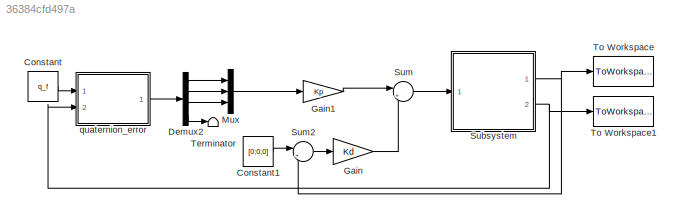
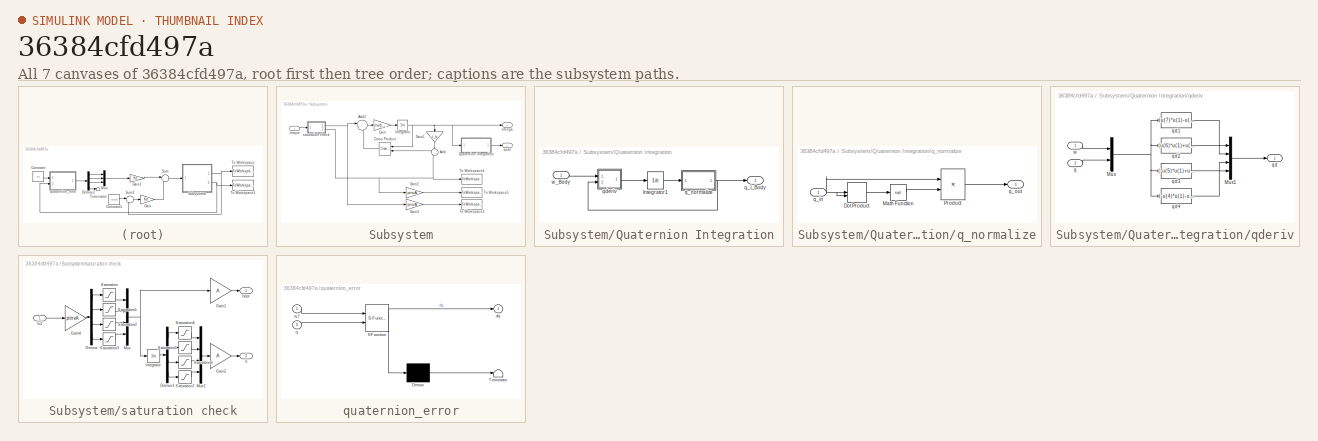
[diagram: thumbnail index - all 7 canvases of the model, root first then tree order]
MODEL slx_36384cfd497a
KIND model
CONFIG AbsTol = auto
CONFIG EnableMultiTasking = off
CONFIG FixedStep = 1
CONFIG MaxStep = auto
CONFIG MinStep = auto
CONFIG RelTol = 1e-3
CONFIG SampleTimeConstraint = Unconstrained
CONFIG Solver = FixedStepAuto
CONFIG SolverName = FixedStepAuto
CONFIG StartTime = 0.0
CONFIG StopTime = t_f
BLOCK [Constant] Constant
  Value = q_f
  VectorParams1D = off
BLOCK [Constant] Constant1
  Value = [0;0;0]
BLOCK [Demux] Demux2
  DisplayOption = bar
  Ports = [1, 4]
BLOCK [Gain] Gain
  Gain = Kd
  OutDataTypeStr = Inherit: Inherit via internal rule
  ParamDataTypeStr = Inherit: Inherit via internal rule
  SaturateOnIntegerOverflow = off
BLOCK [Gain] Gain1
  Gain = Kp
  OutDataTypeStr = Inherit: Inherit via internal rule
  ParamDataTypeStr = Inherit: Inherit via internal rule
  SaturateOnIntegerOverflow = off
BLOCK [Mux] Mux
  DisplayOption = bar
  Inputs = 3
  Ports = [3, 1]
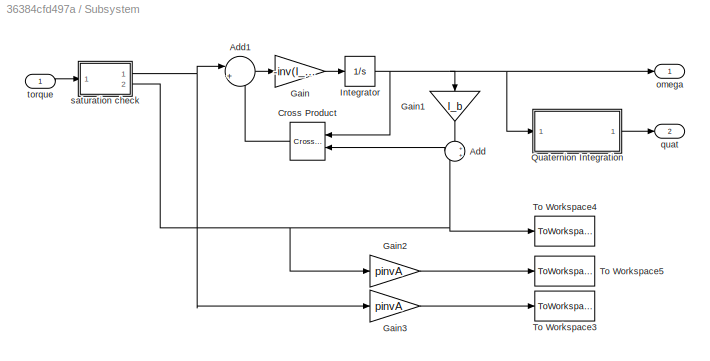
BLOCK [SubSystem] Subsystem
  Ports = [1, 2]
  RequestExecContextInheritance = off
BLOCK [Sum] Subsystem/Add
  IconShape = round
  InputSameDT = off
  OutDataTypeStr = Inherit: Inherit via internal rule
  Ports = [2, 1]
  SaturateOnIntegerOverflow = off
BLOCK [Sum] Subsystem/Add1
  IconShape = round
  InputSameDT = off
  Inputs = |++
  OutDataTypeStr = Inherit: Inherit via internal rule
  Ports = [2, 1]
  SaturateOnIntegerOverflow = off
BLOCK [Reference] Subsystem/Cross Product  REF=vrlib/Utilities/Cross Product
  Ports = [2, 1]
  SourceBlock = vrlib/Utilities/Cross Product
  SourceProductBaseCode = VR
  SourceProductName = Simulink 3D Animation
  SourceType = Cross Product
BLOCK [Gain] Subsystem/Gain
  Gain = -inv(I_b)
  Multiplication = Matrix(K*u) (u vector)
  OutDataTypeStr = Inherit: Inherit via internal rule
  ParamDataTypeStr = Inherit: Inherit via internal rule
  SaturateOnIntegerOverflow = off
BLOCK [Gain] Subsystem/Gain1
  Gain = I_b
  Multiplication = Matrix(K*u) (u vector)
  OutDataTypeStr = Inherit: Inherit via internal rule
  ParamDataTypeStr = Inherit: Inherit via internal rule
  SaturateOnIntegerOverflow = off
BLOCK [Gain] Subsystem/Gain2
  Gain = pinvA
  Multiplication = Matrix(K*u) (u vector)
  OutDataTypeStr = Inherit: Inherit via internal rule
  ParamDataTypeStr = Inherit: Inherit via internal rule
  SaturateOnIntegerOverflow = off
BLOCK [Gain] Subsystem/Gain3
  Gain = pinvA
  Multiplication = Matrix(K*u) (u vector)
  OutDataTypeStr = Inherit: Inherit via internal rule
  ParamDataTypeStr = Inherit: Inherit via internal rule
  SaturateOnIntegerOverflow = off
BLOCK [Integrator] Subsystem/Integrator
  InitialCondition = omega_B_N_t0
  Ports = [1, 1]
BLOCK [SubSystem] Subsystem/Quaternion Integration
  Ports = [1, 1]
  RequestExecContextInheritance = off
BLOCK [Integrator] Subsystem/Quaternion Integration/Integrator1
  InitialCondition = q_t0
  Ports = [1, 1]
BLOCK [Outport] Subsystem/Quaternion Integration/q_I_Body
  IconDisplay = Port number
BLOCK [SubSystem] Subsystem/Quaternion Integration/q_normalize
  Ports = [1, 1]
  RequestExecContextInheritance = off
BLOCK [DotProduct] Subsystem/Quaternion Integration/q_normalize/Dot Product
  OutDataTypeStr = Inherit: Inherit via internal rule
BLOCK [Math] Subsystem/Quaternion Integration/q_normalize/Math Function
  Operator = sqrt
  Ports = [1, 1]
BLOCK [Product] Subsystem/Quaternion Integration/q_normalize/Product
  Inputs = */
  Ports = [2, 1]
  RndMeth = Floor
BLOCK [Inport] Subsystem/Quaternion Integration/q_normalize/q_in
  IconDisplay = Port number
  PortDimensions = 4
BLOCK [Outport] Subsystem/Quaternion Integration/q_normalize/q_out
  IconDisplay = Port number
BLOCK [SubSystem] Subsystem/Quaternion Integration/qderiv
  Ports = [2, 1]
  RequestExecContextInheritance = off
BLOCK [Mux] Subsystem/Quaternion Integration/qderiv/Mux
  DisplayOption = bar
  Inputs = 2
  Ports = [2, 1]
BLOCK [Mux] Subsystem/Quaternion Integration/qderiv/Mux1
  DisplayOption = bar
  Ports = [4, 1]
BLOCK [Inport] Subsystem/Quaternion Integration/qderiv/q
  IconDisplay = Port number
  Port = 2
BLOCK [Outport] Subsystem/Quaternion Integration/qderiv/qd
  IconDisplay = Port number
BLOCK [Fcn] Subsystem/Quaternion Integration/qderiv/qd1
  Expr = (u(7)*u(1)-u(6)*u(2)+u(5)*u(3))/2
BLOCK [Fcn] Subsystem/Quaternion Integration/qderiv/qd2
  Expr = (u(6)*u(1)+u(7)*u(2)-u(4)*u(3))/2
BLOCK [Fcn] Subsystem/Quaternion Integration/qderiv/qd3
  Expr = (-u(5)*u(1)+u(4)*u(2)+u(7)*u(3))/2
BLOCK [Fcn] Subsystem/Quaternion Integration/qderiv/qd4
  Expr = (-u(4)*u(1)-u(5)*u(2)-u(6)*u(3))/2
BLOCK [Inport] Subsystem/Quaternion Integration/qderiv/w
  IconDisplay = Port number
BLOCK [Inport] Subsystem/Quaternion Integration/w_Body
  IconDisplay = Port number
BLOCK [ToWorkspace] Subsystem/To Workspace3
  FixptAsFi = on
  MaxDataPoints = inf
  Ports = [1]
  SampleTime = -1
  Save2DSignal = 3-D array (concatenate along third dimension)
  SaveFormat = Timeseries
  VariableName = hdot_i
BLOCK [ToWorkspace] Subsystem/To Workspace4
  FixptAsFi = on
  MaxDataPoints = inf
  Ports = [1]
  SampleTime = -1
  Save2DSignal = 3-D array (concatenate along third dimension)
  SaveFormat = Timeseries
  VariableName = h_total
BLOCK [ToWorkspace] Subsystem/To Workspace5
  FixptAsFi = on
  MaxDataPoints = inf
  Ports = [1]
  SampleTime = -1
  Save2DSignal = 3-D array (concatenate along third dimension)
  SaveFormat = Timeseries
  VariableName = h_i
BLOCK [Outport] Subsystem/omega 
  IconDisplay = Port number
BLOCK [Outport] Subsystem/quat
  IconDisplay = Port number
  Port = 2
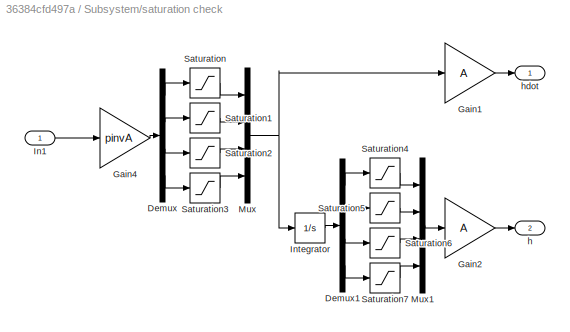
BLOCK [SubSystem] Subsystem/saturation check
  Ports = [1, 2]
  RequestExecContextInheritance = off
BLOCK [Demux] Subsystem/saturation check/Demux
  DisplayOption = bar
  Ports = [1, 4]
BLOCK [Demux] Subsystem/saturation check/Demux1
  DisplayOption = bar
  Ports = [1, 4]
BLOCK [Gain] Subsystem/saturation check/Gain1
  Gain = A
  Multiplication = Matrix(K*u) (u vector)
  OutDataTypeStr = Inherit: Inherit via internal rule
  ParamDataTypeStr = Inherit: Inherit via internal rule
  SaturateOnIntegerOverflow = off
BLOCK [Gain] Subsystem/saturation check/Gain2
  Gain = A
  Multiplication = Matrix(K*u) (u vector)
  OutDataTypeStr = Inherit: Inherit via internal rule
  ParamDataTypeStr = Inherit: Inherit via internal rule
  SaturateOnIntegerOverflow = off
BLOCK [Gain] Subsystem/saturation check/Gain4
  Gain = pinvA
  Multiplication = Matrix(K*u) (u vector)
  OutDataTypeStr = Inherit: Inherit via internal rule
  ParamDataTypeStr = Inherit: Inherit via internal rule
  SaturateOnIntegerOverflow = off
BLOCK [Inport] Subsystem/saturation check/In1
  IconDisplay = Port number
BLOCK [Integrator] Subsystem/saturation check/Integrator
  Ports = [1, 1]
BLOCK [Mux] Subsystem/saturation check/Mux
  DisplayOption = bar
  Ports = [4, 1]
BLOCK [Mux] Subsystem/saturation check/Mux1
  DisplayOption = bar
  Ports = [4, 1]
BLOCK [Saturate] Subsystem/saturation check/Saturation
  InputPortMap = u0
  LowerLimit = -0.0002
  Ports = [1, 1]
  UpperLimit = 0.0002
BLOCK [Saturate] Subsystem/saturation check/Saturation1
  InputPortMap = u0
  LowerLimit = -0.0002
  Ports = [1, 1]
  UpperLimit = 0.0002
BLOCK [Saturate] Subsystem/saturation check/Saturation2
  InputPortMap = u0
  LowerLimit = -0.0002
  Ports = [1, 1]
  UpperLimit = 0.0002
BLOCK [Saturate] Subsystem/saturation check/Saturation3
  InputPortMap = u0
  LowerLimit = -0.0002
  Ports = [1, 1]
  UpperLimit = 0.0002
BLOCK [Saturate] Subsystem/saturation check/Saturation4
  InputPortMap = u0
  LowerLimit = -0.0087
  Ports = [1, 1]
  UpperLimit = 0.0087
BLOCK [Saturate] Subsystem/saturation check/Saturation5
  InputPortMap = u0
  LowerLimit = -0.0087
  Ports = [1, 1]
  UpperLimit = 0.0087
BLOCK [Saturate] Subsystem/saturation check/Saturation6
  InputPortMap = u0
  LowerLimit = -0.0087
  Ports = [1, 1]
  UpperLimit = 0.0087
BLOCK [Saturate] Subsystem/saturation check/Saturation7
  InputPortMap = u0
  LowerLimit = -0.0087
  Ports = [1, 1]
  UpperLimit = 0.0087
BLOCK [Outport] Subsystem/saturation check/h
  IconDisplay = Port number
  Port = 2
BLOCK [Outport] Subsystem/saturation check/hdot
  IconDisplay = Port number
BLOCK [Inport] Subsystem/torque
  IconDisplay = Port number
BLOCK [Sum] Sum
  IconShape = round
  InputSameDT = off
  Inputs = |++
  OutDataTypeStr = Inherit: Inherit via internal rule
  Ports = [2, 1]
  SaturateOnIntegerOverflow = off
BLOCK [Sum] Sum2
  IconShape = round
  InputSameDT = off
  Inputs = |+-
  OutDataTypeStr = Inherit: Inherit via internal rule
  Ports = [2, 1]
  SaturateOnIntegerOverflow = off
BLOCK [Terminator] Terminator
BLOCK [ToWorkspace] To Workspace
  FixptAsFi = on
  MaxDataPoints = inf
  Ports = [1]
  SampleTime = -1
  Save2DSignal = 3-D array (concatenate along third dimension)
  SaveFormat = Timeseries
  VariableName = omega
BLOCK [ToWorkspace] To Workspace1
  FixptAsFi = on
  MaxDataPoints = inf
  Ports = [1]
  SampleTime = -1
  Save2DSignal = 3-D array (concatenate along third dimension)
  SaveFormat = Timeseries
  VariableName = quat
BLOCK [SubSystem] quaternion_error
  ErrorFcn = Stateflow.Translate.translate
  PermitHierarchicalResolution = ExplicitOnly
  Ports = [2, 1]
  RequestExecContextInheritance = off
  SFBlockType = MATLAB Function
  TreatAsAtomicUnit = on
BLOCK [Demux] quaternion_error/ Demux 
  Outputs = 1
  Ports = [1, 1]
BLOCK [S-Function] quaternion_error/ SFunction 
  EnableBusSupport = on
  FunctionName = sf_sfun
  PortCounts = [2 2]
  Ports = [2, 2]
  SFcnIsStateOwnerBlock = off
  SFunctionDeploymentMode = off
  Tag = Stateflow S-Function q1_model2 2
BLOCK [Terminator] quaternion_error/ Terminator 
BLOCK [Outport] quaternion_error/dq
  IconDisplay = Port number
BLOCK [Inport] quaternion_error/q
  IconDisplay = Port number
  Port = 2
BLOCK [Inport] quaternion_error/q_f
  IconDisplay = Port number
LINE Constant1:1 -> Sum2:1
LINE Constant:1 -> quaternion_error:1
LINE Demux2:1 -> Mux:1
LINE Demux2:2 -> Mux:2
LINE Demux2:3 -> Mux:3
LINE Demux2:4 -> Terminator:1
LINE Gain1:1 -> Sum:1
LINE Gain:1 -> Sum:2
LINE Mux:1 -> Gain1:1
LINE Subsystem/Add1:1 -> Subsystem/Gain:1
LINE Subsystem/Add:1 -> Subsystem/Cross Product:2
LINE Subsystem/Cross Product:1 -> Subsystem/Add1:2
LINE Subsystem/Gain1:1 -> Subsystem/Add:1
LINE Subsystem/Gain2:1 -> Subsystem/To Workspace5:1
LINE Subsystem/Gain3:1 -> Subsystem/To Workspace3:1
LINE Subsystem/Gain:1 -> Subsystem/Integrator:1
NET Subsystem/Integrator:1 -> Subsystem/Cross Product:1, Subsystem/Gain1:1, Subsystem/Quaternion Integration:1, Subsystem/omega :1
LINE Subsystem/Quaternion Integration/Integrator1:1 -> Subsystem/Quaternion Integration/q_normalize:1
LINE Subsystem/Quaternion Integration/q_normalize/Dot Product:1 -> Subsystem/Quaternion Integration/q_normalize/Math Function:1
LINE Subsystem/Quaternion Integration/q_normalize/Math Function:1 -> Subsystem/Quaternion Integration/q_normalize/Product:2
LINE Subsystem/Quaternion Integration/q_normalize/Product:1 -> Subsystem/Quaternion Integration/q_normalize/q_out:1
NET Subsystem/Quaternion Integration/q_normalize/q_in:1 -> Subsystem/Quaternion Integration/q_normalize/Dot Product:1, Subsystem/Quaternion Integration/q_normalize/Dot Product:2, Subsystem/Quaternion Integration/q_normalize/Product:1
NET Subsystem/Quaternion Integration/q_normalize:1 -> Subsystem/Quaternion Integration/q_I_Body:1, Subsystem/Quaternion Integration/qderiv:2
LINE Subsystem/Quaternion Integration/qderiv/Mux1:1 -> Subsystem/Quaternion Integration/qderiv/qd:1
NET Subsystem/Quaternion Integration/qderiv/Mux:1 -> Subsystem/Quaternion Integration/qderiv/qd1:1, Subsystem/Quaternion Integration/qderiv/qd2:1, Subsystem/Quaternion Integration/qderiv/qd3:1, Subsystem/Quaternion Integration/qderiv/qd4:1
LINE Subsystem/Quaternion Integration/qderiv/q:1 -> Subsystem/Quaternion Integration/qderiv/Mux:2
LINE Subsystem/Quaternion Integration/qderiv/qd1:1 -> Subsystem/Quaternion Integration/qderiv/Mux1:1
LINE Subsystem/Quaternion Integration/qderiv/qd2:1 -> Subsystem/Quaternion Integration/qderiv/Mux1:2
LINE Subsystem/Quaternion Integration/qderiv/qd3:1 -> Subsystem/Quaternion Integration/qderiv/Mux1:3
LINE Subsystem/Quaternion Integration/qderiv/qd4:1 -> Subsystem/Quaternion Integration/qderiv/Mux1:4
LINE Subsystem/Quaternion Integration/qderiv/w:1 -> Subsystem/Quaternion Integration/qderiv/Mux:1
LINE Subsystem/Quaternion Integration/qderiv:1 -> Subsystem/Quaternion Integration/Integrator1:1
LINE Subsystem/Quaternion Integration/w_Body:1 -> Subsystem/Quaternion Integration/qderiv:1
LINE Subsystem/Quaternion Integration:1 -> Subsystem/quat:1
LINE Subsystem/saturation check/Demux1:1 -> Subsystem/saturation check/Saturation4:1
LINE Subsystem/saturation check/Demux1:2 -> Subsystem/saturation check/Saturation5:1
LINE Subsystem/saturation check/Demux1:3 -> Subsystem/saturation check/Saturation6:1
LINE Subsystem/saturation check/Demux1:4 -> Subsystem/saturation check/Saturation7:1
LINE Subsystem/saturation check/Demux:1 -> Subsystem/saturation check/Saturation:1
LINE Subsystem/saturation check/Demux:2 -> Subsystem/saturation check/Saturation1:1
LINE Subsystem/saturation check/Demux:3 -> Subsystem/saturation check/Saturation2:1
LINE Subsystem/saturation check/Demux:4 -> Subsystem/saturation check/Saturation3:1
LINE Subsystem/saturation check/Gain1:1 -> Subsystem/saturation check/hdot:1
LINE Subsystem/saturation check/Gain2:1 -> Subsystem/saturation check/h:1
LINE Subsystem/saturation check/Gain4:1 -> Subsystem/saturation check/Demux:1
LINE Subsystem/saturation check/In1:1 -> Subsystem/saturation check/Gain4:1
LINE Subsystem/saturation check/Integrator:1 -> Subsystem/saturation check/Demux1:1
LINE Subsystem/saturation check/Mux1:1 -> Subsystem/saturation check/Gain2:1
NET Subsystem/saturation check/Mux:1 -> Subsystem/saturation check/Gain1:1, Subsystem/saturation check/Integrator:1
LINE Subsystem/saturation check/Saturation1:1 -> Subsystem/saturation check/Mux:2
LINE Subsystem/saturation check/Saturation2:1 -> Subsystem/saturation check/Mux:3
LINE Subsystem/saturation check/Saturation3:1 -> Subsystem/saturation check/Mux:4
LINE Subsystem/saturation check/Saturation4:1 -> Subsystem/saturation check/Mux1:1
LINE Subsystem/saturation check/Saturation5:1 -> Subsystem/saturation check/Mux1:2
LINE Subsystem/saturation check/Saturation6:1 -> Subsystem/saturation check/Mux1:3
LINE Subsystem/saturation check/Saturation7:1 -> Subsystem/saturation check/Mux1:4
LINE Subsystem/saturation check/Saturation:1 -> Subsystem/saturation check/Mux:1
NET Subsystem/saturation check:1 -> Subsystem/Add1:1, Subsystem/Gain3:1
NET Subsystem/saturation check:2 -> Subsystem/Add:2, Subsystem/Gain2:1, Subsystem/To Workspace4:1
LINE Subsystem/torque:1 -> Subsystem/saturation check:1
NET Subsystem:1 -> Sum2:2, To Workspace:1
NET Subsystem:2 -> To Workspace1:1, quaternion_error:2
LINE Sum2:1 -> Gain:1
LINE Sum:1 -> Subsystem:1
LINE quaternion_error:1 -> Demux2:1
note: NET lines group one-source signal fan-out (src -> all destinations, sorted); 1:1 wires keep LINE
CHART quaternion_error states=1 transitions=1
  STATE_LABEL 'eML_blk_kernel()'
  STATE_LABEL "SCRIPT:\nfunction dq = quaterr(q_f, q)\ndq = zeros(4,1);\nquatmult = zeros(4,1);\nquatmult = [q(4)*eye(3) q(1:3); -q(1:3).' q(4)]*[-q_f(1:3); q_f(4)];\ndq = -(1/(q_f(4)^2 + q_f(1)^2 + q_f(2)^2 + q_f(3)^2))*quatmult;\nend\n"
